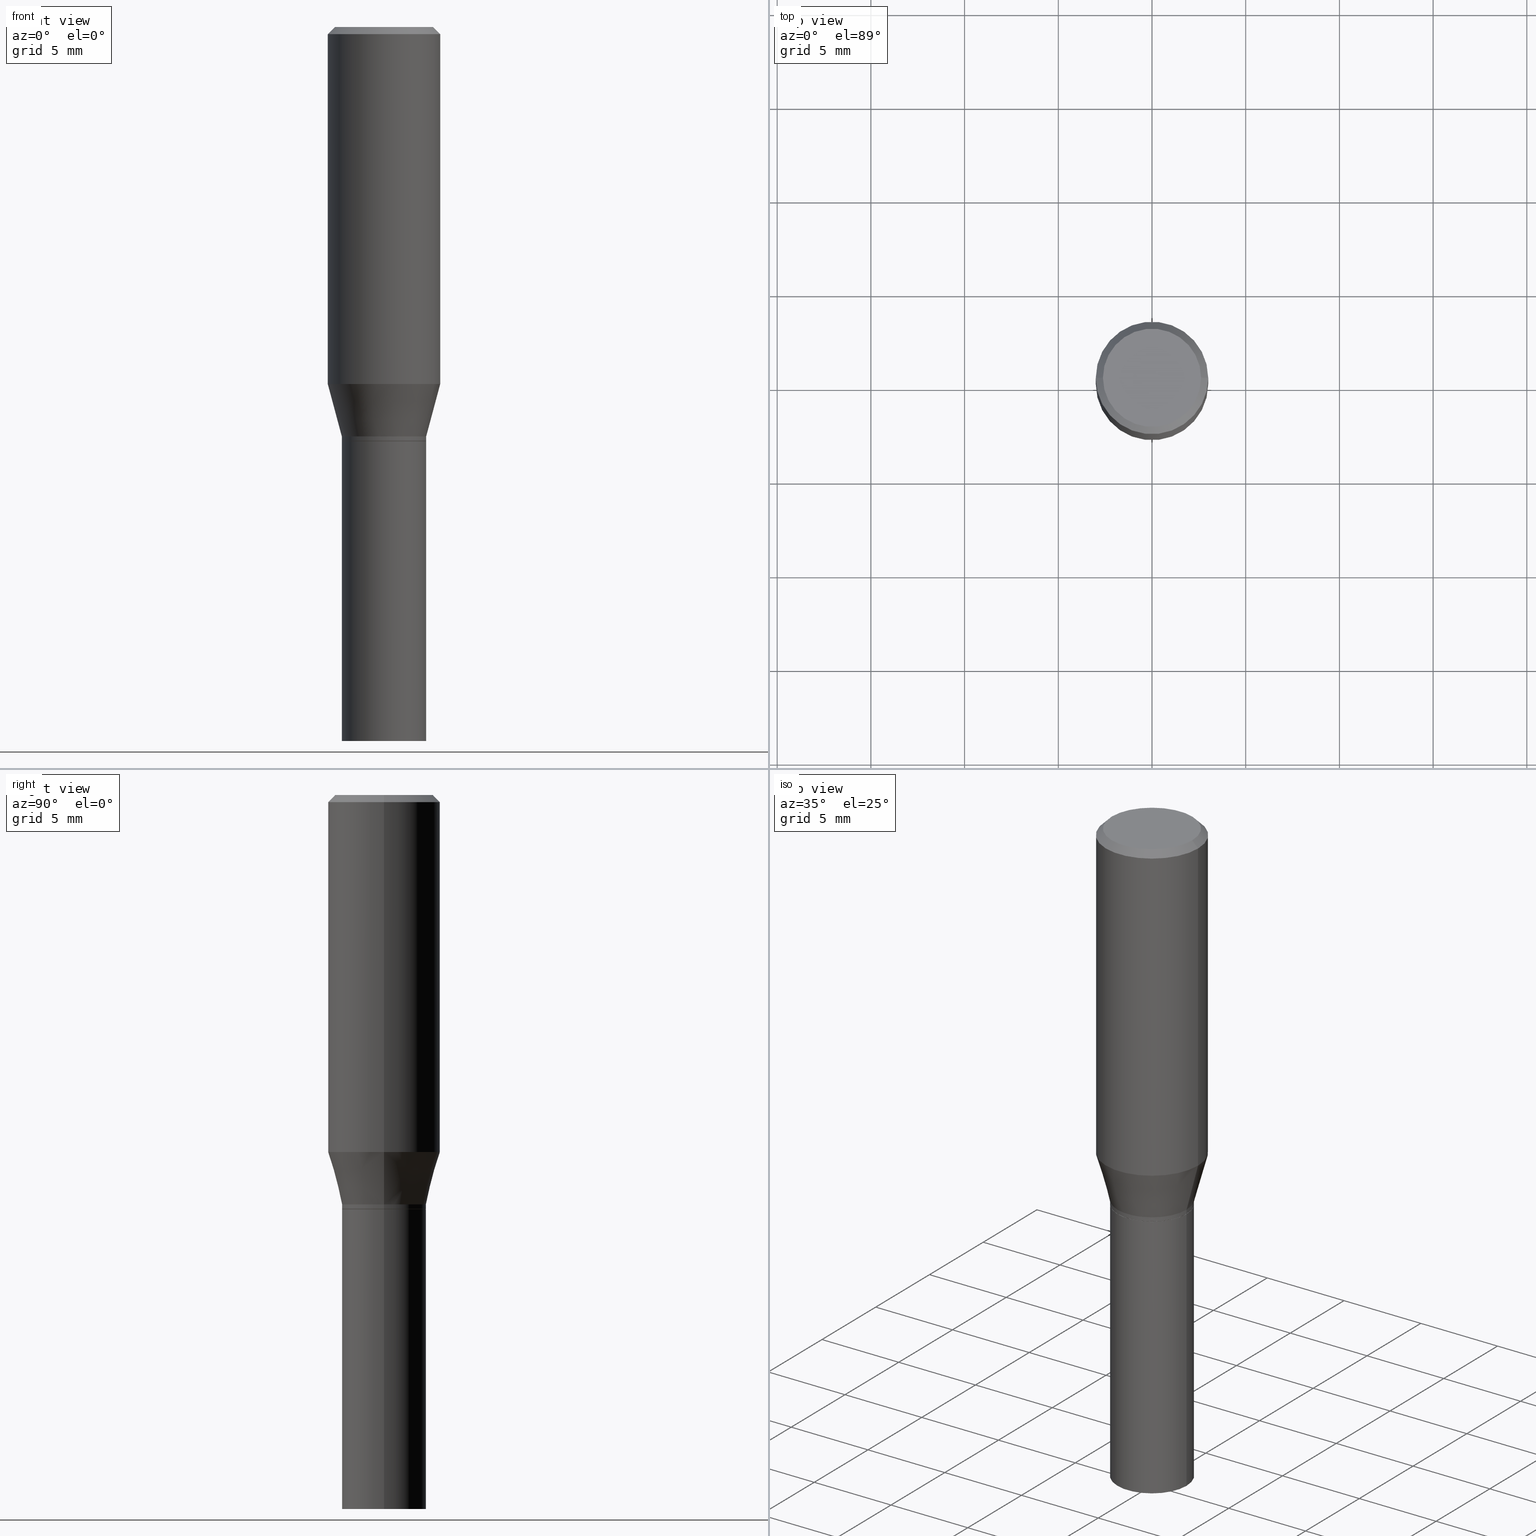
[diagram: canonical four-view strip — front | top / right | iso, engineering-drawing reading convention]
A machine part, canonical four-view strip (front | top / right | iso — engineering-drawing reading convention). The complete STEP part file that produces these views, byte-faithful:
ISO-10303-21;
HEADER;
FILE_DESCRIPTION (( 'STEP AP203' ),
    '1' );
FILE_NAME ('48635.STEP',
    '2024-03-12T19:36:03',
    ( '' ),
    ( '' ),
    'SwSTEP 2.0',
    'SolidWorks 2023',
    '' );
FILE_SCHEMA (( 'CONFIG_CONTROL_DESIGN' ));
ENDSEC;

DATA;
#1 = CIRCLE ( 'NONE', #333, 0.08859999999999995657 ) ;
#2 = FACE_OUTER_BOUND ( 'NONE', #184, .T. ) ;
#3 = AXIS2_PLACEMENT_3D ( 'NONE', #121, #409, #237 ) ;
#4 = VERTEX_POINT ( 'NONE', #367 ) ;
#5 = DIRECTION ( 'NONE',  ( 1.000000000000000000, -6.982962677686266711E-15, 0.000000000000000000 ) ) ;
#6 = ORIENTED_EDGE ( 'NONE', *, *, #178, .T. ) ;
#7 = APPROVAL_ROLE ( '' ) ;
#8 = ADVANCED_FACE ( 'NONE', ( #378 ), #54, .F. ) ;
#9 = CARTESIAN_POINT ( 'NONE',  ( 4.647400995173613138E-45, -6.635256932220833331E-31, -1.900413116462290932E-16 ) ) ;
#10 =( LENGTH_UNIT ( ) NAMED_UNIT ( * ) SI_UNIT ( $, .METRE. ) );
#11 = AXIS2_PLACEMENT_3D ( 'NONE', #133, #413, #276 ) ;
#12 = DIRECTION ( 'NONE',  ( 1.000000000000000000, -6.982962677686266711E-15, 0.000000000000000000 ) ) ;
#13 = APPROVAL_PERSON_ORGANIZATION ( #174, #241, #453 ) ;
#14 = EDGE_CURVE ( 'NONE', #461, #320, #445, .T. ) ;
#15 = CARTESIAN_POINT ( 'NONE',  ( 0.08859999999999999820, -6.186904932430032487E-16, 4.320292623355198765E-30 ) ) ;
#16 = PERSON_AND_ORGANIZATION_ROLE ( 'creator' ) ;
#17 = CARTESIAN_POINT ( 'NONE',  ( 3.668203209277705088E-31, -5.237222008264718399E-17, -0.01499999999999999944 ) ) ;
#18 = CARTESIAN_POINT ( 'NONE',  ( 2.103347720199836549E-29, -3.003023099538990346E-15, -0.8601000000000001977 ) ) ;
#19 = CLOSED_SHELL ( 'NONE', ( #327, #435, #338, #451, #281, #86, #345, #141, #444, #8, #113, #111 ) ) ;
#20 = VECTOR ( 'NONE', #252, 39.37007874015748854 ) ;
#21 = DIRECTION ( 'NONE',  ( 1.000000000000000000, -6.982962677686266711E-15, 0.000000000000000000 ) ) ;
#22 = CC_DESIGN_PERSON_AND_ORGANIZATION_ASSIGNMENT ( #448, #386, ( #127 ) ) ;
#23 = CARTESIAN_POINT ( 'NONE',  ( 0.08809999999999999776, -3.653136924831581152E-15, -0.8700999999999999845 ) ) ;
#24 = DIRECTION ( 'NONE',  ( 1.000000000000000000, -6.982962677686265922E-15, 0.000000000000000000 ) ) ;
#25 = AXIS2_PLACEMENT_3D ( 'NONE', #207, #349, #24 ) ;
#26 = APPROVAL ( #296, 'UNSPECIFIED' ) ;
#27 = SECURITY_CLASSIFICATION_LEVEL ( 'unclassified' ) ;
#28 = LINE ( 'NONE', #137, #209 ) ;
#29 = DIRECTION ( 'NONE',  ( 1.000000000000000000, -6.982962677686264344E-15, 0.000000000000000000 ) ) ;
#30 = APPLICATION_CONTEXT ( 'configuration controlled 3d designs of mechanical parts and assemblies' ) ;
#31 = FACE_OUTER_BOUND ( 'NONE', #397, .T. ) ;
#32 = ORIENTED_EDGE ( 'NONE', *, *, #309, .T. ) ;
#33 = AXIS2_PLACEMENT_3D ( 'NONE', #462, #426, #112 ) ;
#34 = DIRECTION ( 'NONE',  ( 1.000000000000000000, -6.982962677686266711E-15, 4.876176775795935232E-29 ) ) ;
#35 = ORIENTED_EDGE ( 'NONE', *, *, #130, .T. ) ;
#36 = DIRECTION ( 'NONE',  ( -0.7071067811865516806, 2.468850131082300842E-15, -0.7071067811865431318 ) ) ;
#37 = EDGE_LOOP ( 'NONE', ( #442, #116 ) ) ;
#38 = CARTESIAN_POINT ( 'NONE',  ( 2.127802408261687534E-29, -3.037937912927421601E-15, -0.8701000000000000956 ) ) ;
#39 = VECTOR ( 'NONE', #175, 39.37007874015748143 ) ;
#40 = CC_DESIGN_PERSON_AND_ORGANIZATION_ASSIGNMENT ( #340, #16, ( #182 ) ) ;
#41 = DIRECTION ( 'NONE',  ( 1.000000000000000000, -6.982962677686266711E-15, 4.876176775795935232E-29 ) ) ;
#42 =( GEOMETRIC_REPRESENTATION_CONTEXT ( 3 ) GLOBAL_UNCERTAINTY_ASSIGNED_CONTEXT ( ( #163 ) ) GLOBAL_UNIT_ASSIGNED_CONTEXT ( ( #298, #404, #234 ) ) REPRESENTATION_CONTEXT ( 'NONE', 'WORKASPACE' ) );
#43 = ORIENTED_EDGE ( 'NONE', *, *, #138, .F. ) ;
#44 = EDGE_CURVE ( 'NONE', #155, #72, #95, .T. ) ;
#45 = FACE_OUTER_BOUND ( 'NONE', #114, .T. ) ;
#46 = CARTESIAN_POINT ( 'NONE',  ( -0.1180999999999999966, 8.391509709326782957E-16, -5.809262341591043784E-30 ) ) ;
#47 = APPROVAL_DATE_TIME ( #377, #362 ) ;
#48 = ORIENTED_EDGE ( 'NONE', *, *, #144, .F. ) ;
#49 = CARTESIAN_POINT ( 'NONE',  ( 2.127802408261687534E-29, -3.037937912927420812E-15, -0.8700999999999999845 ) ) ;
#50 = CIRCLE ( 'NONE', #393, 0.08859999999999999820 ) ;
#51 = ORIENTED_EDGE ( 'NONE', *, *, #260, .F. ) ;
#52 = DIRECTION ( 'NONE',  ( -2.445468806185136877E-29, 3.491481338843145188E-15, 1.000000000000000000 ) ) ;
#53 = DIRECTION ( 'NONE',  ( 1.000000000000000000, -6.982962677686266711E-15, 4.876176775795936353E-29 ) ) ;
#54 = PLANE ( 'NONE',  #436 ) ;
#55 = DIRECTION ( 'NONE',  ( -2.445468806185136597E-29, 3.491481338843145583E-15, 1.000000000000000000 ) ) ;
#56 = FACE_OUTER_BOUND ( 'NONE', #235, .T. ) ;
#57 = FACE_OUTER_BOUND ( 'NONE', #170, .T. ) ;
#58 = EDGE_CURVE ( 'NONE', #4, #74, #305, .T. ) ;
#59 = CARTESIAN_POINT ( 'NONE',  ( 2.103347720199836549E-29, -3.003023099538990346E-15, -0.8601000000000001977 ) ) ;
#60 = EDGE_CURVE ( 'NONE', #261, #399, #101, .T. ) ;
#61 = AXIS2_PLACEMENT_3D ( 'NONE', #353, #422, #41 ) ;
#62 = APPROVAL_PERSON_ORGANIZATION ( #153, #26, #7 ) ;
#63 = PERSON_AND_ORGANIZATION_ROLE ( 'design_supplier' ) ;
#64 = FACE_OUTER_BOUND ( 'NONE', #193, .T. ) ;
#65 = DIRECTION ( 'NONE',  ( 1.000000000000000000, -6.982962677686263555E-15, 0.000000000000000000 ) ) ;
#66 = FACE_OUTER_BOUND ( 'NONE', #218, .T. ) ;
#67 = CC_DESIGN_DATE_AND_TIME_ASSIGNMENT ( #243, #382, ( #127 ) ) ;
#68 = AXIS2_PLACEMENT_3D ( 'NONE', #383, #420, #457 ) ;
#69 = DIMENSIONAL_EXPONENTS ( 1.000000000000000000, 0.000000000000000000, 0.000000000000000000, 0.000000000000000000, 0.000000000000000000, 0.000000000000000000, 0.000000000000000000 ) ;
#70 = EDGE_CURVE ( 'NONE', #125, #268, #164, .T. ) ;
#71 = DIRECTION ( 'NONE',  ( -2.445468806185136597E-29, 3.491481338843145583E-15, 1.000000000000000000 ) ) ;
#72 = VERTEX_POINT ( 'NONE', #83 ) ;
#73 = CARTESIAN_POINT ( 'NONE',  ( -0.1031000000000000111, 7.461295621107772493E-16, -1.900413116462341961E-16 ) ) ;
#74 = VERTEX_POINT ( 'NONE', #80 ) ;
#75 = CARTESIAN_POINT ( 'NONE',  ( -0.1180999999999999966, 7.723156721521009862E-16, -0.01499999999999999944 ) ) ;
#76 = ORIENTED_EDGE ( 'NONE', *, *, #418, .T. ) ;
#77 = EDGE_CURVE ( 'NONE', #399, #261, #158, .T. ) ;
#78 = AXIS2_PLACEMENT_3D ( 'NONE', #231, #122, #380 ) ;
#79 = LOCAL_TIME ( 15, 36, 3.000000000000000000, #165 ) ;
#80 = CARTESIAN_POINT ( 'NONE',  ( 0.1180999999999999966, -3.443314612141622358E-15, -0.7500045011767182412 ) ) ;
#81 = ORIENTED_EDGE ( 'NONE', *, *, #120, .T. ) ;
#82 = APPROVAL_ROLE ( '' ) ;
#83 = CARTESIAN_POINT ( 'NONE',  ( 0.1180999999999999966, -8.770601123173952432E-16, -0.01499999999999999944 ) ) ;
#84 = EDGE_CURVE ( 'NONE', #4, #155, #203, .T. ) ;
#85 = CONICAL_SURFACE ( 'NONE', #350, 0.1180999999999999966, 0.7853981633974543852 ) ;
#86 = ADVANCED_FACE ( 'NONE', ( #266 ), #284, .T. ) ;
#87 = ORIENTED_EDGE ( 'NONE', *, *, #250, .F. ) ;
#88 = PERSON_AND_ORGANIZATION_ROLE ( 'design_owner' ) ;
#89 = ORIENTED_EDGE ( 'NONE', *, *, #60, .T. ) ;
#90 = CALENDAR_DATE ( 2024, 12, 3 ) ;
#91 = DIRECTION ( 'NONE',  ( -2.445468806185136597E-29, 3.491481338843145583E-15, 1.000000000000000000 ) ) ;
#92 = EDGE_CURVE ( 'NONE', #264, #355, #279, .T. ) ;
#93 = PERSON_AND_ORGANIZATION ( #219, #376 ) ;
#94 = FACE_OUTER_BOUND ( 'NONE', #342, .T. ) ;
#95 = CIRCLE ( 'NONE', #343, 0.1180999999999999966 ) ;
#96 = LOCAL_TIME ( 15, 36, 3.000000000000000000, #379 ) ;
#97 = COORDINATED_UNIVERSAL_TIME_OFFSET ( 5, 0, .BEHIND. ) ;
#98 = DIRECTION ( 'NONE',  ( -1.000000000000000000, 6.982962677686265922E-15, -4.876176775795935793E-29 ) ) ;
#99 = CARTESIAN_POINT ( 'NONE',  ( -0.08859999999999999820, 6.295408638834487519E-16, -4.358176489965846267E-30 ) ) ;
#100 = CARTESIAN_POINT ( 'NONE',  ( 3.668203209277705088E-31, -5.237222008264718399E-17, -0.01499999999999999944 ) ) ;
#101 = CIRCLE ( 'NONE', #150, 0.1031000000000000111 ) ;
#102 = DIRECTION ( 'NONE',  ( 1.000000000000000000, -6.982962677686267499E-15, 4.876176775795935793E-29 ) ) ;
#103 = CARTESIAN_POINT ( 'NONE',  ( 0.1180999999999999966, -8.625970336194650129E-16, -0.01499999999999999944 ) ) ;
#104 = ORIENTED_EDGE ( 'NONE', *, *, #236, .T. ) ;
#105 = CARTESIAN_POINT ( 'NONE',  ( -0.08859999999999999820, -3.508039096712621630E-15, -0.8701000000000000956 ) ) ;
#106 = ORIENTED_EDGE ( 'NONE', *, *, #227, .T. ) ;
#107 = CIRCLE ( 'NONE', #427, 0.1180999999999999966 ) ;
#108 = CONICAL_SURFACE ( 'NONE', #459, 0.08809999999999999776, 0.7853981633977384913 ) ;
#109 = CARTESIAN_POINT ( 'NONE',  ( 0.000000000000000000, 0.000000000000000000, 0.000000000000000000 ) ) ;
#110 = ORIENTED_EDGE ( 'NONE', *, *, #14, .T. ) ;
#111 = ADVANCED_FACE ( 'NONE', ( #56 ), #314, .T. ) ;
#112 = DIRECTION ( 'NONE',  ( 1.000000000000000000, -6.982962677686264344E-15, 0.000000000000000000 ) ) ;
#113 = ADVANCED_FACE ( 'NONE', ( #57 ), #408, .T. ) ;
#114 = EDGE_LOOP ( 'NONE', ( #81, #395, #329, #48 ) ) ;
#115 = DIRECTION ( 'NONE',  ( -2.445468806185136597E-29, 3.491481338843145583E-15, 1.000000000000000000 ) ) ;
#116 = ORIENTED_EDGE ( 'NONE', *, *, #466, .F. ) ;
#117 = AXIS2_PLACEMENT_3D ( 'NONE', #222, #328, #102 ) ;
#118 = COORDINATED_UNIVERSAL_TIME_OFFSET ( 5, 0, .BEHIND. ) ;
#119 = DIRECTION ( 'NONE',  ( -2.445468806185136597E-29, 3.491481338843145583E-15, 1.000000000000000000 ) ) ;
#120 = EDGE_CURVE ( 'NONE', #74, #4, #168, .T. ) ;
#121 = CARTESIAN_POINT ( 'NONE',  ( 3.668203209277704895E-29, -5.237222008264718177E-15, -1.500000000000000222 ) ) ;
#122 = DIRECTION ( 'NONE',  ( -2.445468806185136597E-29, 3.491481338843145583E-15, 1.000000000000000000 ) ) ;
#123 = EDGE_CURVE ( 'NONE', #355, #320, #140, .T. ) ;
#124 = CARTESIAN_POINT ( 'NONE',  ( 0.000000000000000000, 0.000000000000000000, 0.000000000000000000 ) ) ;
#125 = VERTEX_POINT ( 'NONE', #308 ) ;
#126 = CLOSED_SHELL ( 'NONE', ( #311, #167, #391, #244 ) ) ;
#127 = SECURITY_CLASSIFICATION ( '', '', #27 ) ;
#128 = DIRECTION ( 'NONE',  ( 1.000000000000000000, -6.982962677686265133E-15, 0.000000000000000000 ) ) ;
#129 = ORIENTED_EDGE ( 'NONE', *, *, #123, .F. ) ;
#130 = EDGE_CURVE ( 'NONE', #72, #155, #107, .T. ) ;
#131 = SHAPE_DEFINITION_REPRESENTATION ( #194, #154 ) ;
#132 = DIRECTION ( 'NONE',  ( 1.000000000000000000, -6.982962677686266711E-15, 0.000000000000000000 ) ) ;
#133 = CARTESIAN_POINT ( 'NONE',  ( 3.668203209277705088E-31, -5.237222008264718399E-17, -0.01499999999999999944 ) ) ;
#134 = VECTOR ( 'NONE', #280, 39.37007874015748143 ) ;
#135 = AXIS2_PLACEMENT_3D ( 'NONE', #431, #256, #34 ) ;
#136 = LINE ( 'NONE', #346, #317 ) ;
#137 = CARTESIAN_POINT ( 'NONE',  ( 0.08860000000000008147, -6.186904932430038403E-16, 4.320292623355202969E-30 ) ) ;
#138 = EDGE_CURVE ( 'NONE', #274, #74, #136, .T. ) ;
#139 = DIRECTION ( 'NONE',  ( -2.445468806185136877E-29, 3.491481338843145188E-15, 1.000000000000000000 ) ) ;
#140 = CIRCLE ( 'NONE', #204, 0.08859999999999999820 ) ;
#141 = ADVANCED_FACE ( 'NONE', ( #64 ), #324, .T. ) ;
#142 = CARTESIAN_POINT ( 'NONE',  ( -0.08859999999999999820, -3.508039096712621630E-15, -1.500000000000000222 ) ) ;
#143 = VERTEX_POINT ( 'NONE', #239 ) ;
#144 = EDGE_CURVE ( 'NONE', #74, #72, #171, .T. ) ;
#145 = FACE_OUTER_BOUND ( 'NONE', #255, .T. ) ;
#146 = ORIENTED_EDGE ( 'NONE', *, *, #92, .T. ) ;
#147 = CC_DESIGN_DATE_AND_TIME_ASSIGNMENT ( #369, #443, ( #182 ) ) ;
#148 = LINE ( 'NONE', #460, #190 ) ;
#149 = ORIENTED_EDGE ( 'NONE', *, *, #456, .F. ) ;
#150 = AXIS2_PLACEMENT_3D ( 'NONE', #9, #299, #272 ) ;
#151 = DIRECTION ( 'NONE',  ( -2.445468806185136597E-29, 3.491481338843145583E-15, 1.000000000000000000 ) ) ;
#152 = ORIENTED_EDGE ( 'NONE', *, *, #58, .T. ) ;
#153 = PERSON_AND_ORGANIZATION ( #219, #376 ) ;
#154 = ADVANCED_BREP_SHAPE_REPRESENTATION ( '48635', ( #374, #368, #306 ), #42 ) ;
#155 = VERTEX_POINT ( 'NONE', #387 ) ;
#156 = EDGE_LOOP ( 'NONE', ( #359, #89 ) ) ;
#157 = AXIS2_PLACEMENT_3D ( 'NONE', #450, #205, #206 ) ;
#158 = CIRCLE ( 'NONE', #78, 0.1031000000000000111 ) ;
#159 = DIRECTION ( 'NONE',  ( -2.445468806185136597E-29, 3.491481338843145583E-15, 1.000000000000000000 ) ) ;
#160 = CIRCLE ( 'NONE', #293, 0.08809999999999999776 ) ;
#161 = DIRECTION ( 'NONE',  ( -2.445468806185136597E-29, 3.491481338843145583E-15, 1.000000000000000000 ) ) ;
#162 = EDGE_CURVE ( 'NONE', #301, #125, #269, .T. ) ;
#163 = UNCERTAINTY_MEASURE_WITH_UNIT (LENGTH_MEASURE( 1.000000000000000082E-05 ), #298, 'distance_accuracy_value', 'NONE');
#164 = LINE ( 'NONE', #410, #357 ) ;
#165 = COORDINATED_UNIVERSAL_TIME_OFFSET ( 5, 0, .BEHIND. ) ;
#166 = DIRECTION ( 'NONE',  ( -2.445468806185136597E-29, 3.491481338843145583E-15, 1.000000000000000000 ) ) ;
#167 = ADVANCED_FACE ( 'NONE', ( #94 ), #455, .F. ) ;
#168 = CIRCLE ( 'NONE', #157, 0.1180999999999999966 ) ;
#169 = CC_DESIGN_SECURITY_CLASSIFICATION ( #127, ( #318 ) ) ;
#170 = EDGE_LOOP ( 'NONE', ( #192, #292, #104, #51 ) ) ;
#171 = LINE ( 'NONE', #352, #39 ) ;
#172 = APPROVAL_DATE_TIME ( #273, #241 ) ;
#173 = CARTESIAN_POINT ( 'NONE',  ( 2.127802408261687534E-29, -3.037937912927421601E-15, -0.8701000000000000956 ) ) ;
#174 = PERSON_AND_ORGANIZATION ( #219, #376 ) ;
#175 = DIRECTION ( 'NONE',  ( -2.445468806185136877E-29, 3.491481338843145188E-15, 1.000000000000000000 ) ) ;
#176 = CONICAL_SURFACE ( 'NONE', #232, 0.08859999999999995657, 0.2617993877991496854 ) ;
#177 = AXIS2_PLACEMENT_3D ( 'NONE', #356, #199, #195 ) ;
#178 = EDGE_CURVE ( 'NONE', #268, #274, #1, .T. ) ;
#179 = PERSON_AND_ORGANIZATION_ROLE ( 'creator' ) ;
#180 = CARTESIAN_POINT ( 'NONE',  ( 2.127802408261687534E-29, -3.037937912927420812E-15, -0.8700999999999999845 ) ) ;
#181 = DIRECTION ( 'NONE',  ( -2.445468806185136597E-29, 3.491481338843145583E-15, 1.000000000000000000 ) ) ;
#182 = PRODUCT_DEFINITION ( 'UNKNOWN', '', #318, #430 ) ;
#183 = LINE ( 'NONE', #394, #233 ) ;
#184 = EDGE_LOOP ( 'NONE', ( #325, #146, #434, #223 ) ) ;
#185 = DIRECTION ( 'NONE',  ( 2.445468806185136597E-29, -3.491481338843145583E-15, -1.000000000000000000 ) ) ;
#186 = ORIENTED_EDGE ( 'NONE', *, *, #162, .F. ) ;
#187 = CARTESIAN_POINT ( 'NONE',  ( 2.103347720199836549E-29, -3.003023099538990346E-15, -0.8601000000000001977 ) ) ;
#188 = EDGE_LOOP ( 'NONE', ( #331, #465 ) ) ;
#189 = DIRECTION ( 'NONE',  ( -0.7071067811867527420, 7.493145998871095689E-15, 0.7071067811863422925 ) ) ;
#190 = VECTOR ( 'NONE', #294, 39.37007874015748143 ) ;
#191 = FACE_OUTER_BOUND ( 'NONE', #432, .T. ) ;
#192 = ORIENTED_EDGE ( 'NONE', *, *, #416, .F. ) ;
#193 = EDGE_LOOP ( 'NONE', ( #226, #425, #32, #407 ) ) ;
#194 = PRODUCT_DEFINITION_SHAPE ( 'NONE', 'NONE',  #182 ) ;
#195 = DIRECTION ( 'NONE',  ( -1.000000000000000000, 6.982962677686265922E-15, -4.876176775795935793E-29 ) ) ;
#196 = ORIENTED_EDGE ( 'NONE', *, *, #423, .T. ) ;
#197 = CIRCLE ( 'NONE', #25, 0.08860000000000017861 ) ;
#198 = CC_DESIGN_APPROVAL ( #26, ( #318 ) ) ;
#199 = DIRECTION ( 'NONE',  ( 2.438088387897960049E-29, -3.491481338843145188E-15, -1.000000000000000000 ) ) ;
#200 = ORIENTED_EDGE ( 'NONE', *, *, #441, .T. ) ;
#201 = CARTESIAN_POINT ( 'NONE',  ( 1.834112612126108016E-29, -2.618626719906874095E-15, -0.7500045011767182412 ) ) ;
#202 = CALENDAR_DATE ( 2024, 12, 3 ) ;
#203 = LINE ( 'NONE', #46, #446 ) ;
#204 = AXIS2_PLACEMENT_3D ( 'NONE', #173, #91, #454 ) ;
#205 = DIRECTION ( 'NONE',  ( -2.445468806185136597E-29, 3.491481338843145583E-15, 1.000000000000000000 ) ) ;
#206 = DIRECTION ( 'NONE',  ( 1.000000000000000000, -6.982962677686265133E-15, 0.000000000000000000 ) ) ;
#207 = CARTESIAN_POINT ( 'NONE',  ( 2.126579673858595013E-29, -3.036192172257999703E-15, -0.8696000000000000396 ) ) ;
#208 = DIRECTION ( 'NONE',  ( -2.445468806185136597E-29, 3.491481338843145583E-15, 1.000000000000000000 ) ) ;
#209 = VECTOR ( 'NONE', #139, 39.37007874015748143 ) ;
#210 = AXIS2_PLACEMENT_3D ( 'NONE', #220, #290, #258 ) ;
#211 = DIRECTION ( 'NONE',  ( 1.000000000000000000, -6.982962677686267499E-15, 4.876176775795935793E-29 ) ) ;
#212 = CARTESIAN_POINT ( 'NONE',  ( -0.08859999999999995657, -2.076478992314868500E-15, -0.8601000000000001977 ) ) ;
#213 = ORIENTED_EDGE ( 'NONE', *, *, #227, .F. ) ;
#214 = PLANE ( 'NONE',  #177 ) ;
#215 = ORIENTED_EDGE ( 'NONE', *, *, #162, .T. ) ;
#216 = LOCAL_TIME ( 15, 36, 3.000000000000000000, #118 ) ;
#217 = DIRECTION ( 'NONE',  ( 1.000000000000000000, -6.982962677686264344E-15, 0.000000000000000000 ) ) ;
#218 = EDGE_LOOP ( 'NONE', ( #200, #361, #297, #43 ) ) ;
#219 = PERSON ( 'UNSPECIFIED', 'UNSPECIFIED', 'UNSPECIFIED', ('UNSPECIFIED'), ('UNSPECIFIED'), ('UNSPECIFIED') ) ;
#220 = CARTESIAN_POINT ( 'NONE',  ( 2.103347720199836549E-29, -3.003023099538990346E-15, -0.8601000000000001977 ) ) ;
#221 = ORIENTED_EDGE ( 'NONE', *, *, #44, .F. ) ;
#222 = CARTESIAN_POINT ( 'NONE',  ( 0.000000000000000000, 0.000000000000000000, 0.000000000000000000 ) ) ;
#223 = ORIENTED_EDGE ( 'NONE', *, *, #14, .F. ) ;
#224 = CIRCLE ( 'NONE', #33, 0.08809999999999999776 ) ;
#225 = DIRECTION ( 'NONE',  ( 1.000000000000000000, 0.000000000000000000, 0.000000000000000000 ) ) ;
#226 = ORIENTED_EDGE ( 'NONE', *, *, #423, .F. ) ;
#227 = EDGE_CURVE ( 'NONE', #301, #274, #28, .T. ) ;
#228 = APPROVAL_DATE_TIME ( #402, #26 ) ;
#229 = EDGE_LOOP ( 'NONE', ( #259, #196, #35, #289 ) ) ;
#230 = DIRECTION ( 'NONE',  ( 0.000000000000000000, 0.000000000000000000, 1.000000000000000000 ) ) ;
#231 = CARTESIAN_POINT ( 'NONE',  ( 4.647400995173613138E-45, -6.635256932220833331E-31, -1.900413116462290932E-16 ) ) ;
#232 = AXIS2_PLACEMENT_3D ( 'NONE', #187, #365, #5 ) ;
#233 = VECTOR ( 'NONE', #189, 39.37007874015748143 ) ;
#234 =( NAMED_UNIT ( * ) SI_UNIT ( $, .STERADIAN. ) SOLID_ANGLE_UNIT ( ) );
#235 = EDGE_LOOP ( 'NONE', ( #339, #304, #106, #401 ) ) ;
#236 = EDGE_CURVE ( 'NONE', #143, #301, #347, .T. ) ;
#237 = DIRECTION ( 'NONE',  ( 1.000000000000000000, -6.982962677686269077E-15, 0.000000000000000000 ) ) ;
#238 = CARTESIAN_POINT ( 'NONE',  ( 2.127802408261687534E-29, -3.037937912927421601E-15, -0.8701000000000000956 ) ) ;
#239 = CARTESIAN_POINT ( 'NONE',  ( 0.08809999999999999776, -3.653136924831581152E-15, -0.8700999999999999845 ) ) ;
#240 = AXIS2_PLACEMENT_3D ( 'NONE', #201, #161, #128 ) ;
#241 = APPROVAL ( #312, 'UNSPECIFIED' ) ;
#242 = DIRECTION ( 'NONE',  ( 1.000000000000000000, -6.982962677686266711E-15, 0.000000000000000000 ) ) ;
#243 = DATE_AND_TIME ( #348, #249 ) ;
#244 = ADVANCED_FACE ( 'NONE', ( #449 ), #417, .F. ) ;
#245 = DIRECTION ( 'NONE',  ( -2.445468806185136597E-29, 3.491481338843145583E-15, 1.000000000000000000 ) ) ;
#246 = DIRECTION ( 'NONE',  ( 0.2588190451025210170, 1.565188264969624531E-15, 0.9659258262890682012 ) ) ;
#247 = CARTESIAN_POINT ( 'NONE',  ( 6.186904932430243507E-16, 0.08859999999999695897, -0.8701000000000003176 ) ) ;
#248 = AXIS2_PLACEMENT_3D ( 'NONE', #18, #119, #21 ) ;
#249 = LOCAL_TIME ( 15, 36, 3.000000000000000000, #278 ) ;
#250 = EDGE_CURVE ( 'NONE', #461, #264, #50, .T. ) ;
#251 = CARTESIAN_POINT ( 'NONE',  ( 3.668203209277705088E-31, -5.237222008264718399E-17, -0.01499999999999999944 ) ) ;
#252 = DIRECTION ( 'NONE',  ( 0.7071067811865516806, -7.319954787623268667E-15, -0.7071067811865431318 ) ) ;
#253 = ORIENTED_EDGE ( 'NONE', *, *, #236, .F. ) ;
#254 = CARTESIAN_POINT ( 'NONE',  ( -0.08809999999999999776, -2.409300535548661264E-15, -0.8700999999999999845 ) ) ;
#255 = EDGE_LOOP ( 'NONE', ( #370, #152, #364, #221 ) ) ;
#256 = DIRECTION ( 'NONE',  ( -2.445468806185136597E-29, 3.491481338843145583E-15, 1.000000000000000000 ) ) ;
#257 = ORIENTED_EDGE ( 'NONE', *, *, #70, .T. ) ;
#258 = DIRECTION ( 'NONE',  ( 1.000000000000000000, -6.982962677686266711E-15, 0.000000000000000000 ) ) ;
#259 = ORIENTED_EDGE ( 'NONE', *, *, #60, .F. ) ;
#260 = EDGE_CURVE ( 'NONE', #125, #301, #197, .T. ) ;
#261 = VERTEX_POINT ( 'NONE', #351 ) ;
#262 = CIRCLE ( 'NONE', #3, 0.08859999999999999820 ) ;
#263 = CALENDAR_DATE ( 2024, 12, 3 ) ;
#264 = VERTEX_POINT ( 'NONE', #142 ) ;
#265 = APPROVAL_STATUS ( 'not_yet_approved' ) ;
#266 = FACE_OUTER_BOUND ( 'NONE', #437, .T. ) ;
#267 = MECHANICAL_CONTEXT ( 'NONE', #30, 'mechanical' ) ;
#268 = VERTEX_POINT ( 'NONE', #212 ) ;
#269 = CIRCLE ( 'NONE', #277, 0.08860000000000017861 ) ;
#270 = AXIS2_PLACEMENT_3D ( 'NONE', #271, #159, #53 ) ;
#271 = CARTESIAN_POINT ( 'NONE',  ( 0.000000000000000000, 0.000000000000000000, 0.000000000000000000 ) ) ;
#272 = DIRECTION ( 'NONE',  ( 1.000000000000000000, -6.982962677686265922E-15, 4.883331232093008327E-29 ) ) ;
#273 = DATE_AND_TIME ( #90, #452 ) ;
#274 = VERTEX_POINT ( 'NONE', #363 ) ;
#275 = CC_DESIGN_PERSON_AND_ORGANIZATION_ASSIGNMENT ( #93, #63, ( #318 ) ) ;
#276 = DIRECTION ( 'NONE',  ( -1.000000000000000000, 6.982962677686266711E-15, 0.000000000000000000 ) ) ;
#277 = AXIS2_PLACEMENT_3D ( 'NONE', #315, #389, #310 ) ;
#278 = COORDINATED_UNIVERSAL_TIME_OFFSET ( 5, 0, .BEHIND. ) ;
#279 = LINE ( 'NONE', #99, #400 ) ;
#280 = DIRECTION ( 'NONE',  ( 0.7071067811867527420, -2.468850131084406312E-15, 0.7071067811863422925 ) ) ;
#281 = ADVANCED_FACE ( 'NONE', ( #66 ), #176, .T. ) ;
#282 = DIRECTION ( 'NONE',  ( -2.445468806185136597E-29, 3.491481338843145583E-15, 1.000000000000000000 ) ) ;
#283 = CARTESIAN_POINT ( 'NONE',  ( 0.08859999999999999820, -3.656628406170424159E-15, -0.8701000000000000956 ) ) ;
#284 = CONICAL_SURFACE ( 'NONE', #248, 0.08859999999999995657, 0.2617993877991496854 ) ;
#285 = CC_DESIGN_APPROVAL ( #362, ( #182 ) ) ;
#286 = FACE_OUTER_BOUND ( 'NONE', #307, .T. ) ;
#287 = ORIENTED_EDGE ( 'NONE', *, *, #372, .F. ) ;
#288 = DIRECTION ( 'NONE',  ( 1.000000000000000000, -6.982962677686266711E-15, 4.876176775795936353E-29 ) ) ;
#289 = ORIENTED_EDGE ( 'NONE', *, *, #309, .F. ) ;
#290 = DIRECTION ( 'NONE',  ( -2.445468806185136597E-29, 3.491481338843145583E-15, 1.000000000000000000 ) ) ;
#291 = AXIS2_PLACEMENT_3D ( 'NONE', #247, #385, #98 ) ;
#292 = ORIENTED_EDGE ( 'NONE', *, *, #466, .T. ) ;
#293 = AXIS2_PLACEMENT_3D ( 'NONE', #49, #115, #336 ) ;
#294 = DIRECTION ( 'NONE',  ( -0.2588190451025210170, 5.211531920934547886E-15, 0.9659258262890682012 ) ) ;
#295 = ORIENTED_EDGE ( 'NONE', *, *, #58, .F. ) ;
#296 = APPROVAL_STATUS ( 'not_yet_approved' ) ;
#297 = ORIENTED_EDGE ( 'NONE', *, *, #120, .F. ) ;
#298 =( CONVERSION_BASED_UNIT ( 'INCH', #438 ) LENGTH_UNIT ( ) NAMED_UNIT ( #69 ) );
#299 = DIRECTION ( 'NONE',  ( -2.445468806185136597E-29, 3.491481338843145583E-15, 1.000000000000000000 ) ) ;
#300 = APPLICATION_PROTOCOL_DEFINITION ( 'international standard', 'config_control_design', 1994, #30 ) ;
#301 = VERTEX_POINT ( 'NONE', #428 ) ;
#302 = APPLICATION_CONTEXT ( 'configuration controlled 3d designs of mechanical parts and assemblies' ) ;
#303 = CALENDAR_DATE ( 2024, 12, 3 ) ;
#304 = ORIENTED_EDGE ( 'NONE', *, *, #260, .T. ) ;
#305 = CIRCLE ( 'NONE', #240, 0.1180999999999999966 ) ;
#306 = AXIS2_PLACEMENT_3D ( 'NONE', #124, #230, #225 ) ;
#307 = EDGE_LOOP ( 'NONE', ( #76, #429, #186, #253 ) ) ;
#308 = CARTESIAN_POINT ( 'NONE',  ( -0.08860000000000017861, -2.406651308374549669E-15, -0.8696000000000000396 ) ) ;
#309 = EDGE_CURVE ( 'NONE', #399, #155, #390, .T. ) ;
#310 = DIRECTION ( 'NONE',  ( 1.000000000000000000, -6.982962677686265922E-15, 0.000000000000000000 ) ) ;
#311 = ADVANCED_FACE ( 'NONE', ( #2 ), #360, .T. ) ;
#312 = APPROVAL_STATUS ( 'not_yet_approved' ) ;
#313 = CARTESIAN_POINT ( 'NONE',  ( 3.668203209277704895E-29, -5.237222008264718177E-15, -1.500000000000000222 ) ) ;
#314 = CYLINDRICAL_SURFACE ( 'NONE', #414, 0.08860000000000008147 ) ;
#315 = CARTESIAN_POINT ( 'NONE',  ( 2.126579673858595013E-29, -3.036192172257999703E-15, -0.8696000000000000396 ) ) ;
#316 = LINE ( 'NONE', #103, #20 ) ;
#317 = VECTOR ( 'NONE', #246, 39.37007874015748143 ) ;
#318 = PRODUCT_DEFINITION_FORMATION_WITH_SPECIFIED_SOURCE ( 'ANY', '', #388, .NOT_KNOWN. ) ;
#319 = CYLINDRICAL_SURFACE ( 'NONE', #334, 0.1180999999999999966 ) ;
#320 = VERTEX_POINT ( 'NONE', #283 ) ;
#321 = CYLINDRICAL_SURFACE ( 'NONE', #117, 0.08860000000000008147 ) ;
#322 = ORIENTED_EDGE ( 'NONE', *, *, #92, .F. ) ;
#323 = DIRECTION ( 'NONE',  ( -2.445468806185136597E-29, 3.491481338843145583E-15, 1.000000000000000000 ) ) ;
#324 = CONICAL_SURFACE ( 'NONE', #11, 0.1180999999999999966, 0.7853981633974543852 ) ;
#325 = ORIENTED_EDGE ( 'NONE', *, *, #250, .T. ) ;
#326 = CIRCLE ( 'NONE', #421, 0.08859999999999999820 ) ;
#327 = ADVANCED_FACE ( 'NONE', ( #191 ), #321, .T. ) ;
#328 = DIRECTION ( 'NONE',  ( -2.445468806185136597E-29, 3.491481338843145583E-15, 1.000000000000000000 ) ) ;
#329 = ORIENTED_EDGE ( 'NONE', *, *, #130, .F. ) ;
#330 = PERSON_AND_ORGANIZATION ( #219, #376 ) ;
#331 = ORIENTED_EDGE ( 'NONE', *, *, #381, .T. ) ;
#332 = DIRECTION ( 'NONE',  ( -2.438088387897960049E-29, 3.491481338843145188E-15, 1.000000000000000000 ) ) ;
#333 = AXIS2_PLACEMENT_3D ( 'NONE', #59, #208, #242 ) ;
#334 = AXIS2_PLACEMENT_3D ( 'NONE', #109, #323, #288 ) ;
#335 = CC_DESIGN_PERSON_AND_ORGANIZATION_ASSIGNMENT ( #412, #179, ( #318 ) ) ;
#336 = DIRECTION ( 'NONE',  ( 1.000000000000000000, -6.982962677686264344E-15, 0.000000000000000000 ) ) ;
#337 = DIRECTION ( 'NONE',  ( 1.000000000000000000, -6.982962677686265922E-15, 4.876176775795935793E-29 ) ) ;
#338 = ADVANCED_FACE ( 'NONE', ( #396 ), #85, .T. ) ;
#339 = ORIENTED_EDGE ( 'NONE', *, *, #70, .F. ) ;
#340 = PERSON_AND_ORGANIZATION ( #219, #376 ) ;
#341 = PRODUCT_RELATED_PRODUCT_CATEGORY ( 'detail', '', ( #388 ) ) ;
#342 = EDGE_LOOP ( 'NONE', ( #87, #149 ) ) ;
#343 = AXIS2_PLACEMENT_3D ( 'NONE', #17, #166, #12 ) ;
#344 = CC_DESIGN_APPROVAL ( #241, ( #127 ) ) ;
#345 = ADVANCED_FACE ( 'NONE', ( #145 ), #319, .T. ) ;
#346 = CARTESIAN_POINT ( 'NONE',  ( 0.08859999999999995657, -3.621713592781993299E-15, -0.8601000000000001977 ) ) ;
#347 = LINE ( 'NONE', #23, #134 ) ;
#348 = CALENDAR_DATE ( 2024, 12, 3 ) ;
#349 = DIRECTION ( 'NONE',  ( -2.445468806185136597E-29, 3.491481338843145583E-15, 1.000000000000000000 ) ) ;
#350 = AXIS2_PLACEMENT_3D ( 'NONE', #251, #185, #424 ) ;
#351 = CARTESIAN_POINT ( 'NONE',  ( 0.1031000000000000111, -7.849571885948552706E-16, -1.900413116462238423E-16 ) ) ;
#352 = CARTESIAN_POINT ( 'NONE',  ( 0.1180999999999999966, -8.246878922347480654E-16, 5.758764772215000440E-30 ) ) ;
#353 = CARTESIAN_POINT ( 'NONE',  ( 0.000000000000000000, 0.000000000000000000, 0.000000000000000000 ) ) ;
#354 = CC_DESIGN_PERSON_AND_ORGANIZATION_ASSIGNMENT ( #440, #88, ( #388 ) ) ;
#355 = VERTEX_POINT ( 'NONE', #105 ) ;
#356 = CARTESIAN_POINT ( 'NONE',  ( 7.199434520694541042E-16, 0.1031000000000000111, -4.549923818578428559E-16 ) ) ;
#357 = VECTOR ( 'NONE', #439, 39.37007874015748143 ) ;
#358 = CIRCLE ( 'NONE', #210, 0.08859999999999995657 ) ;
#359 = ORIENTED_EDGE ( 'NONE', *, *, #77, .T. ) ;
#360 = CYLINDRICAL_SURFACE ( 'NONE', #61, 0.08859999999999999820 ) ;
#361 = ORIENTED_EDGE ( 'NONE', *, *, #372, .T. ) ;
#362 = APPROVAL ( #265, 'UNSPECIFIED' ) ;
#363 = CARTESIAN_POINT ( 'NONE',  ( 0.08859999999999995657, -3.621713592781993299E-15, -0.8601000000000001977 ) ) ;
#364 = ORIENTED_EDGE ( 'NONE', *, *, #144, .T. ) ;
#365 = DIRECTION ( 'NONE',  ( -2.445468806185136597E-29, 3.491481338843145583E-15, 1.000000000000000000 ) ) ;
#366 = VECTOR ( 'NONE', #52, 39.37007874015748143 ) ;
#367 = CARTESIAN_POINT ( 'NONE',  ( -0.1180999999999999966, -1.779475748974195504E-15, -0.7500045011767182412 ) ) ;
#368 = MANIFOLD_SOLID_BREP ( 'Body-Move/Copy2[2]', #19 ) ;
#369 = DATE_AND_TIME ( #303, #79 ) ;
#370 = ORIENTED_EDGE ( 'NONE', *, *, #84, .F. ) ;
#371 = CARTESIAN_POINT ( 'NONE',  ( 0.08859999999999999820, -5.855912501507721918E-15, -1.500000000000000222 ) ) ;
#372 = EDGE_CURVE ( 'NONE', #268, #4, #148, .T. ) ;
#373 = ORIENTED_EDGE ( 'NONE', *, *, #441, .F. ) ;
#374 = MANIFOLD_SOLID_BREP ( 'Body-Move/Copy2[1]', #126 ) ;
#375 = AXIS2_PLACEMENT_3D ( 'NONE', #180, #55, #29 ) ;
#376 = ORGANIZATION ( 'UNSPECIFIED', 'UNSPECIFIED', '' ) ;
#377 = DATE_AND_TIME ( #202, #96 ) ;
#378 = FACE_OUTER_BOUND ( 'NONE', #37, .T. ) ;
#379 = COORDINATED_UNIVERSAL_TIME_OFFSET ( 5, 0, .BEHIND. ) ;
#380 = DIRECTION ( 'NONE',  ( 1.000000000000000000, -6.982962677686265922E-15, 4.883331232093008327E-29 ) ) ;
#381 = EDGE_CURVE ( 'NONE', #320, #355, #326, .T. ) ;
#382 = DATE_TIME_ROLE ( 'classification_date' ) ;
#383 = CARTESIAN_POINT ( 'NONE',  ( 3.576687321579069994E-29, -5.368277968210015545E-15, -1.500000000000000222 ) ) ;
#384 = DIRECTION ( 'NONE',  ( -2.445468806185136877E-29, 3.491481338843145188E-15, 1.000000000000000000 ) ) ;
#385 = DIRECTION ( 'NONE',  ( 2.438088387897960049E-29, -3.491481338843145188E-15, -1.000000000000000000 ) ) ;
#386 = PERSON_AND_ORGANIZATION_ROLE ( 'classification_officer' ) ;
#387 = CARTESIAN_POINT ( 'NONE',  ( -0.1180999999999999966, -4.963484990620821929E-16, -0.01499999999999999944 ) ) ;
#388 = PRODUCT ( '48635', '48635', '', ( #267 ) ) ;
#389 = DIRECTION ( 'NONE',  ( -2.445468806185136597E-29, 3.491481338843145583E-15, 1.000000000000000000 ) ) ;
#390 = LINE ( 'NONE', #75, #458 ) ;
#391 = ADVANCED_FACE ( 'NONE', ( #31 ), #464, .T. ) ;
#392 = CARTESIAN_POINT ( 'NONE',  ( 2.127802408261687534E-29, -3.037937912927420812E-15, -0.8700999999999999845 ) ) ;
#393 = AXIS2_PLACEMENT_3D ( 'NONE', #313, #245, #419 ) ;
#394 = CARTESIAN_POINT ( 'NONE',  ( -0.08809999999999999776, -2.411949762722772465E-15, -0.8700999999999999845 ) ) ;
#395 = ORIENTED_EDGE ( 'NONE', *, *, #84, .T. ) ;
#396 = FACE_OUTER_BOUND ( 'NONE', #229, .T. ) ;
#397 = EDGE_LOOP ( 'NONE', ( #322, #447, #110, #129 ) ) ;
#398 = FACE_OUTER_BOUND ( 'NONE', #156, .T. ) ;
#399 = VERTEX_POINT ( 'NONE', #73 ) ;
#400 = VECTOR ( 'NONE', #384, 39.37007874015748143 ) ;
#401 = ORIENTED_EDGE ( 'NONE', *, *, #178, .F. ) ;
#402 = DATE_AND_TIME ( #263, #216 ) ;
#403 = VERTEX_POINT ( 'NONE', #254 ) ;
#404 =( NAMED_UNIT ( * ) PLANE_ANGLE_UNIT ( ) SI_UNIT ( $, .RADIAN. ) );
#405 = DIRECTION ( 'NONE',  ( -2.445468806185136877E-29, 3.491481338843145188E-15, 1.000000000000000000 ) ) ;
#406 = CYLINDRICAL_SURFACE ( 'NONE', #270, 0.1180999999999999966 ) ;
#407 = ORIENTED_EDGE ( 'NONE', *, *, #44, .T. ) ;
#408 = CONICAL_SURFACE ( 'NONE', #375, 0.08809999999999999776, 0.7853981633977384913 ) ;
#409 = DIRECTION ( 'NONE',  ( -2.445468806185136597E-29, 3.491481338843145583E-15, 1.000000000000000000 ) ) ;
#410 = CARTESIAN_POINT ( 'NONE',  ( -0.08860000000000008147, 6.295408638834493435E-16, -4.358176489965850471E-30 ) ) ;
#411 = CARTESIAN_POINT ( 'NONE',  ( 0.000000000000000000, 0.000000000000000000, 0.000000000000000000 ) ) ;
#412 = PERSON_AND_ORGANIZATION ( #219, #376 ) ;
#413 = DIRECTION ( 'NONE',  ( 2.445468806185136597E-29, -3.491481338843145583E-15, -1.000000000000000000 ) ) ;
#414 = AXIS2_PLACEMENT_3D ( 'NONE', #411, #282, #211 ) ;
#415 = APPROVAL_PERSON_ORGANIZATION ( #330, #362, #82 ) ;
#416 = EDGE_CURVE ( 'NONE', #403, #125, #183, .T. ) ;
#417 = PLANE ( 'NONE',  #291 ) ;
#418 = EDGE_CURVE ( 'NONE', #143, #403, #224, .T. ) ;
#419 = DIRECTION ( 'NONE',  ( 1.000000000000000000, -6.982962677686269077E-15, 0.000000000000000000 ) ) ;
#420 = DIRECTION ( 'NONE',  ( -2.438088387897960049E-29, 3.491481338843145188E-15, 1.000000000000000000 ) ) ;
#421 = AXIS2_PLACEMENT_3D ( 'NONE', #38, #151, #65 ) ;
#422 = DIRECTION ( 'NONE',  ( -2.445468806185136597E-29, 3.491481338843145583E-15, 1.000000000000000000 ) ) ;
#423 = EDGE_CURVE ( 'NONE', #261, #72, #316, .T. ) ;
#424 = DIRECTION ( 'NONE',  ( -1.000000000000000000, 6.982962677686266711E-15, 0.000000000000000000 ) ) ;
#425 = ORIENTED_EDGE ( 'NONE', *, *, #77, .F. ) ;
#426 = DIRECTION ( 'NONE',  ( -2.445468806185136597E-29, 3.491481338843145583E-15, 1.000000000000000000 ) ) ;
#427 = AXIS2_PLACEMENT_3D ( 'NONE', #100, #181, #132 ) ;
#428 = CARTESIAN_POINT ( 'NONE',  ( 0.08860000000000017861, -3.654882665501004233E-15, -0.8696000000000000396 ) ) ;
#429 = ORIENTED_EDGE ( 'NONE', *, *, #416, .T. ) ;
#430 = DESIGN_CONTEXT ( 'detailed design', #302, 'design' ) ;
#431 = CARTESIAN_POINT ( 'NONE',  ( 0.000000000000000000, 0.000000000000000000, 0.000000000000000000 ) ) ;
#432 = EDGE_LOOP ( 'NONE', ( #215, #257, #373, #213 ) ) ;
#433 = APPLICATION_PROTOCOL_DEFINITION ( 'international standard', 'config_control_design', 1994, #302 ) ;
#434 = ORIENTED_EDGE ( 'NONE', *, *, #381, .F. ) ;
#435 = ADVANCED_FACE ( 'NONE', ( #286 ), #108, .T. ) ;
#436 = AXIS2_PLACEMENT_3D ( 'NONE', #238, #332, #337 ) ;
#437 = EDGE_LOOP ( 'NONE', ( #287, #6, #463, #295 ) ) ;
#438 = LENGTH_MEASURE_WITH_UNIT ( LENGTH_MEASURE( 0.02539999999999999897 ), #10 );
#439 = DIRECTION ( 'NONE',  ( -2.445468806185136877E-29, 3.491481338843145188E-15, 1.000000000000000000 ) ) ;
#440 = PERSON_AND_ORGANIZATION ( #219, #376 ) ;
#441 = EDGE_CURVE ( 'NONE', #274, #268, #358, .T. ) ;
#442 = ORIENTED_EDGE ( 'NONE', *, *, #418, .F. ) ;
#443 = DATE_TIME_ROLE ( 'creation_date' ) ;
#444 = ADVANCED_FACE ( 'NONE', ( #398 ), #214, .F. ) ;
#445 = LINE ( 'NONE', #15, #366 ) ;
#446 = VECTOR ( 'NONE', #405, 39.37007874015748143 ) ;
#447 = ORIENTED_EDGE ( 'NONE', *, *, #456, .T. ) ;
#448 = PERSON_AND_ORGANIZATION ( #219, #376 ) ;
#449 = FACE_OUTER_BOUND ( 'NONE', #188, .T. ) ;
#450 = CARTESIAN_POINT ( 'NONE',  ( 1.834112612126108016E-29, -2.618626719906874095E-15, -0.7500045011767182412 ) ) ;
#451 = ADVANCED_FACE ( 'NONE', ( #45 ), #406, .T. ) ;
#452 = LOCAL_TIME ( 15, 36, 3.000000000000000000, #97 ) ;
#453 = APPROVAL_ROLE ( '' ) ;
#454 = DIRECTION ( 'NONE',  ( 1.000000000000000000, -6.982962677686263555E-15, 0.000000000000000000 ) ) ;
#455 = PLANE ( 'NONE',  #68 ) ;
#456 = EDGE_CURVE ( 'NONE', #264, #461, #262, .T. ) ;
#457 = DIRECTION ( 'NONE',  ( 1.000000000000000000, -6.982962677686265922E-15, 4.876176775795935793E-29 ) ) ;
#458 = VECTOR ( 'NONE', #36, 39.37007874015748854 ) ;
#459 = AXIS2_PLACEMENT_3D ( 'NONE', #392, #71, #217 ) ;
#460 = CARTESIAN_POINT ( 'NONE',  ( -0.08859999999999995657, -2.373482235655541495E-15, -0.8601000000000001977 ) ) ;
#461 = VERTEX_POINT ( 'NONE', #371 ) ;
#462 = CARTESIAN_POINT ( 'NONE',  ( 2.127802408261687534E-29, -3.037937912927420812E-15, -0.8700999999999999845 ) ) ;
#463 = ORIENTED_EDGE ( 'NONE', *, *, #138, .T. ) ;
#464 = CYLINDRICAL_SURFACE ( 'NONE', #135, 0.08859999999999999820 ) ;
#465 = ORIENTED_EDGE ( 'NONE', *, *, #123, .T. ) ;
#466 = EDGE_CURVE ( 'NONE', #403, #143, #160, .T. ) ;
ENDSEC;
END-ISO-10303-21;
